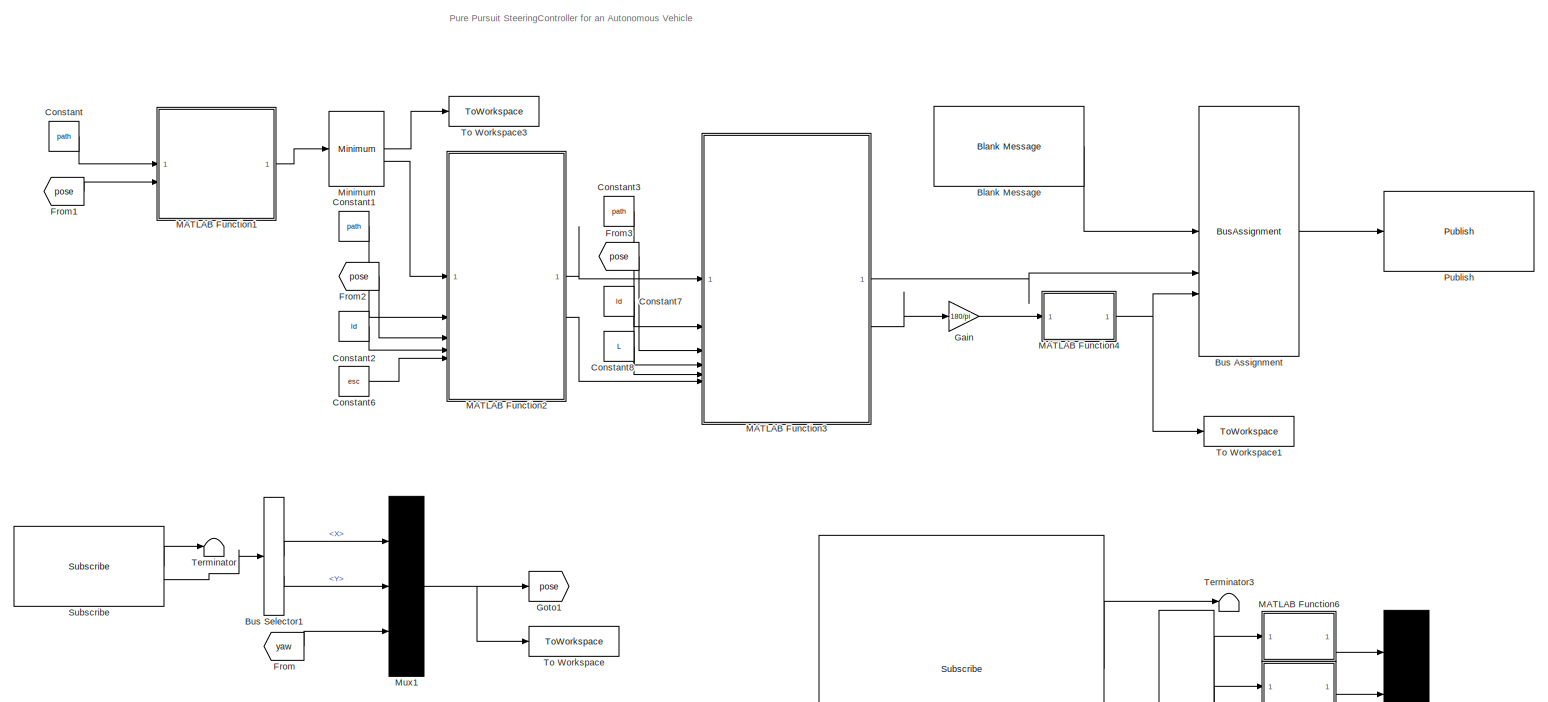
[diagram: root canvas - part 1/2, most of the canvas]
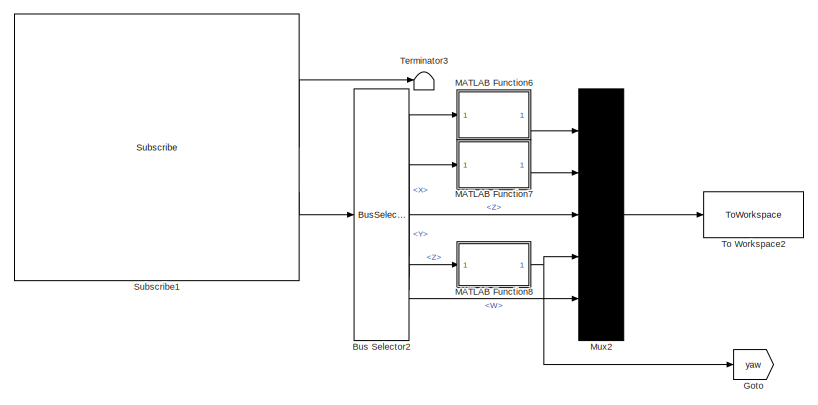
[diagram: root canvas - part 2/2, bottom right region]
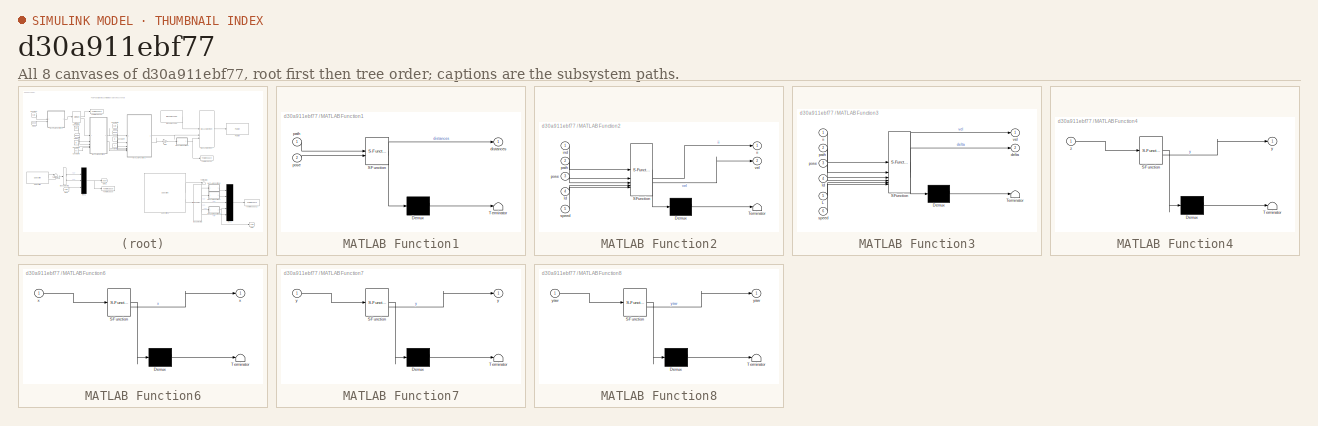
[diagram: thumbnail index - all 8 canvases of the model, root first then tree order]
MODEL slx_d30a911ebf77
KIND model
CONFIG AbsTol = auto
CONFIG EnableMultiTasking = off
CONFIG FixedStep = auto
CONFIG MaxStep = auto
CONFIG MinStep = auto
CONFIG RelTol = 1e-3
CONFIG SampleTimeConstraint = Unconstrained
CONFIG SolverName = VariableStepAuto
CONFIG StartTime = 0.0
CONFIG StopTime = inf
BLOCK [Reference] Blank Message  REF=robotlib/Blank Message
  LibrarySourceBlock = roslib/ROS/Blank Message
  SourceBlock = robotlib/Blank Message
  SourceType = ROS Blank Message
BLOCK [BusAssignment] Bus Assignment
  AssignedSignals = Linear.X,Angular.Z
BLOCK [BusSelector] Bus Selector1
  OutputSignals = Pose.Position.X,Pose.Position.Y
BLOCK [BusSelector] Bus Selector2
  OutputSignals = LinearAcceleration.X,LinearAcceleration.Y,AngularVelocity.Z,Orientation.Z,Orientation.W
BLOCK [Constant] Constant
  SampleTime = 1/hz
  Value = path
BLOCK [Constant] Constant1
  SampleTime = 1/hz
  Value = path
BLOCK [Constant] Constant2
  SampleTime = 1/hz
  Value = ld
BLOCK [Constant] Constant3
  SampleTime = 1/hz
  Value = path
BLOCK [Constant] Constant6
  SampleTime = 1/hz
  Value = esc
BLOCK [Constant] Constant7
  SampleTime = 1/hz
  Value = ld
BLOCK [Constant] Constant8
  SampleTime = 1/hz
  Value = L
BLOCK [From] From
  GotoTag = yaw
BLOCK [From] From1
  GotoTag = pose
BLOCK [From] From2
  GotoTag = pose
BLOCK [From] From3
  GotoTag = pose
BLOCK [Gain] Gain
  Gain = 180/pi
BLOCK [Goto] Goto
  GotoTag = yaw
BLOCK [Goto] Goto1
  GotoTag = pose
BLOCK [SubSystem] MATLAB Function1
  ErrorFcn = Stateflow.Translate.translate
  LibrarySourceBlock = simulink/User-Defined\nFunctions/MATLAB Function
  PermitHierarchicalResolution = ExplicitOnly
  SFBlockType = MATLAB Function
  TreatAsAtomicUnit = on
BLOCK [Demux] MATLAB Function1/ Demux 
  Outputs = 1
BLOCK [S-Function] MATLAB Function1/ SFunction 
  EnableBusSupport = on
  FunctionName = sf_sfun
  PortCounts = [2 2]
  SFcnIsStateOwnerBlock = off
  SFunctionDeploymentMode = off
  Tag = Stateflow S-Function 1
BLOCK [Terminator] MATLAB Function1/ Terminator 
BLOCK [Outport] MATLAB Function1/distances
BLOCK [Inport] MATLAB Function1/path
BLOCK [Inport] MATLAB Function1/pose
  Port = 2
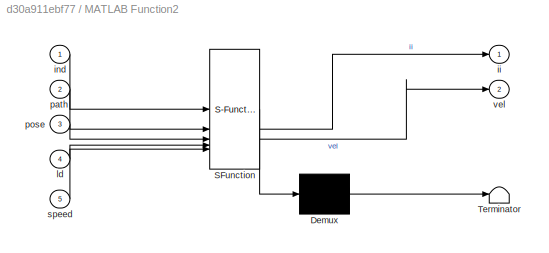
BLOCK [SubSystem] MATLAB Function2
  ErrorFcn = Stateflow.Translate.translate
  LibrarySourceBlock = simulink/User-Defined\nFunctions/MATLAB Function
  PermitHierarchicalResolution = ExplicitOnly
  SFBlockType = MATLAB Function
  TreatAsAtomicUnit = on
BLOCK [Demux] MATLAB Function2/ Demux 
  Outputs = 1
BLOCK [S-Function] MATLAB Function2/ SFunction 
  EnableBusSupport = on
  FunctionName = sf_sfun
  PortCounts = [5 3]
  SFcnIsStateOwnerBlock = off
  SFunctionDeploymentMode = off
  Tag = Stateflow S-Function 3
BLOCK [Terminator] MATLAB Function2/ Terminator 
BLOCK [Outport] MATLAB Function2/ii
BLOCK [Inport] MATLAB Function2/ind
BLOCK [Inport] MATLAB Function2/ld
  Port = 4
BLOCK [Inport] MATLAB Function2/path
  Port = 2
BLOCK [Inport] MATLAB Function2/pose
  Port = 3
BLOCK [Inport] MATLAB Function2/speed
  Port = 5
BLOCK [Outport] MATLAB Function2/vel
  Port = 2
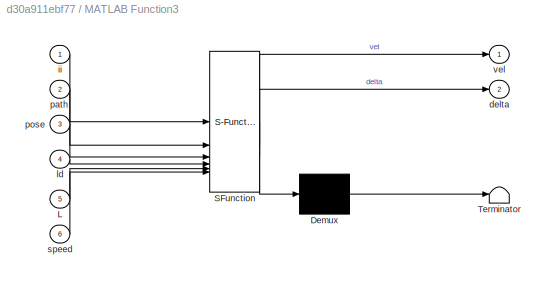
BLOCK [SubSystem] MATLAB Function3
  ErrorFcn = Stateflow.Translate.translate
  LibrarySourceBlock = simulink/User-Defined\nFunctions/MATLAB Function
  PermitHierarchicalResolution = ExplicitOnly
  SFBlockType = MATLAB Function
  TreatAsAtomicUnit = on
BLOCK [Demux] MATLAB Function3/ Demux 
  Outputs = 1
BLOCK [S-Function] MATLAB Function3/ SFunction 
  EnableBusSupport = on
  FunctionName = sf_sfun
  PortCounts = [6 3]
  SFcnIsStateOwnerBlock = off
  SFunctionDeploymentMode = off
  Tag = Stateflow S-Function 4
BLOCK [Terminator] MATLAB Function3/ Terminator 
BLOCK [Inport] MATLAB Function3/L
  Port = 5
BLOCK [Outport] MATLAB Function3/delta
  Port = 2
BLOCK [Inport] MATLAB Function3/ii
BLOCK [Inport] MATLAB Function3/ld
  Port = 4
BLOCK [Inport] MATLAB Function3/path
  Port = 2
BLOCK [Inport] MATLAB Function3/pose
  Port = 3
BLOCK [Inport] MATLAB Function3/speed
  Port = 6
BLOCK [Outport] MATLAB Function3/vel
BLOCK [SubSystem] MATLAB Function4
  ErrorFcn = Stateflow.Translate.translate
  LibrarySourceBlock = simulink/User-Defined\nFunctions/MATLAB Function
  PermitHierarchicalResolution = ExplicitOnly
  SFBlockType = MATLAB Function
  TreatAsAtomicUnit = on
BLOCK [Demux] MATLAB Function4/ Demux 
  Outputs = 1
BLOCK [S-Function] MATLAB Function4/ SFunction 
  EnableBusSupport = on
  FunctionName = sf_sfun
  PortCounts = [1 2]
  SFcnIsStateOwnerBlock = off
  SFunctionDeploymentMode = off
  Tag = Stateflow S-Function 5
BLOCK [Terminator] MATLAB Function4/ Terminator 
BLOCK [Outport] MATLAB Function4/y
BLOCK [Inport] MATLAB Function4/z
BLOCK [SubSystem] MATLAB Function6
  ErrorFcn = Stateflow.Translate.translate
  LibrarySourceBlock = simulink/User-Defined\nFunctions/MATLAB Function
  PermitHierarchicalResolution = ExplicitOnly
  SFBlockType = MATLAB Function
  TreatAsAtomicUnit = on
BLOCK [Demux] MATLAB Function6/ Demux 
  Outputs = 1
BLOCK [S-Function] MATLAB Function6/ SFunction 
  EnableBusSupport = on
  FunctionName = sf_sfun
  PortCounts = [1 2]
  SFcnIsStateOwnerBlock = off
  SFunctionDeploymentMode = off
  Tag = Stateflow S-Function 7
BLOCK [Terminator] MATLAB Function6/ Terminator 
BLOCK [Outport] MATLAB Function6/x
BLOCK [Inport] MATLAB Function6/x 
BLOCK [SubSystem] MATLAB Function7
  ErrorFcn = Stateflow.Translate.translate
  LibrarySourceBlock = simulink/User-Defined\nFunctions/MATLAB Function
  PermitHierarchicalResolution = ExplicitOnly
  SFBlockType = MATLAB Function
  TreatAsAtomicUnit = on
BLOCK [Demux] MATLAB Function7/ Demux 
  Outputs = 1
BLOCK [S-Function] MATLAB Function7/ SFunction 
  EnableBusSupport = on
  FunctionName = sf_sfun
  PortCounts = [1 2]
  SFcnIsStateOwnerBlock = off
  SFunctionDeploymentMode = off
  Tag = Stateflow S-Function 8
BLOCK [Terminator] MATLAB Function7/ Terminator 
BLOCK [Outport] MATLAB Function7/y
BLOCK [Inport] MATLAB Function7/y 
BLOCK [SubSystem] MATLAB Function8
  ErrorFcn = Stateflow.Translate.translate
  LibrarySourceBlock = simulink/User-Defined\nFunctions/MATLAB Function
  PermitHierarchicalResolution = ExplicitOnly
  SFBlockType = MATLAB Function
  TreatAsAtomicUnit = on
BLOCK [Demux] MATLAB Function8/ Demux 
  Outputs = 1
BLOCK [S-Function] MATLAB Function8/ SFunction 
  EnableBusSupport = on
  FunctionName = sf_sfun
  PortCounts = [1 2]
  SFcnIsStateOwnerBlock = off
  SFunctionDeploymentMode = off
  Tag = Stateflow S-Function 9
BLOCK [Terminator] MATLAB Function8/ Terminator 
BLOCK [Outport] MATLAB Function8/yaw
BLOCK [Inport] MATLAB Function8/yaw 
BLOCK [Reference] Minimum  REF=dspstat3/Minimum
  LibrarySourceBlock = dsphdlsupportstat/Minimum
  SourceBlock = dspstat3/Minimum
  SourceType = Minimum
  UserDataPersistent = on
BLOCK [Mux] Mux1
  DisplayOption = bar
  Inputs = 3
BLOCK [Mux] Mux2
  DisplayOption = bar
  Inputs = 5
BLOCK [Reference] Publish  REF=robotlib/Publish
  LibrarySourceBlock = roslib/ROS/Publish
  SourceBlock = robotlib/Publish
  SourceType = ROS Publish
BLOCK [Reference] Subscribe  REF=robotlib/Subscribe
  LibrarySourceBlock = roslib/ROS/Subscribe
  SourceBlock = robotlib/Subscribe
  SourceType = ROS Subscribe
BLOCK [Reference] Subscribe1  REF=robotlib/Subscribe
  LibrarySourceBlock = roslib/ROS/Subscribe
  SourceBlock = robotlib/Subscribe
  SourceType = ROS Subscribe
BLOCK [Terminator] Terminator
BLOCK [Terminator] Terminator3
BLOCK [ToWorkspace] To Workspace
  FixptAsFi = on
  MaxDataPoints = inf
  SampleTime = -1
  SaveFormat = Structure With Time
  VariableName = pose
BLOCK [ToWorkspace] To Workspace1
  FixptAsFi = on
  MaxDataPoints = inf
  SampleTime = 1/hz
  SaveFormat = Structure With Time
  VariableName = steering
BLOCK [ToWorkspace] To Workspace2
  FixptAsFi = on
  MaxDataPoints = inf
  SampleTime = -1
  SaveFormat = Structure With Time
  VariableName = IMU
BLOCK [ToWorkspace] To Workspace3
  FixptAsFi = on
  MaxDataPoints = inf
  SampleTime = -1
  SaveFormat = Structure With Time
  VariableName = min_d
ANNOTATION (root): Pure Pursuit SteeringController for an Autonomous Vehicle
LINE Blank Message:1 -> Bus Assignment:1
LINE Bus Assignment:1 -> Publish:1
LINE Bus Selector1:1 -> Mux1:1
LINE Bus Selector1:2 -> Mux1:2
LINE Bus Selector2:1 -> MATLAB Function6:1
LINE Bus Selector2:2 -> MATLAB Function7:1
LINE Bus Selector2:3 -> Mux2:3
LINE Bus Selector2:4 -> MATLAB Function8:1
LINE Bus Selector2:5 -> Mux2:5
LINE Constant1:1 -> MATLAB Function2:2
LINE Constant2:1 -> MATLAB Function2:4
LINE Constant3:1 -> MATLAB Function3:2
LINE Constant6:1 -> MATLAB Function2:5
LINE Constant7:1 -> MATLAB Function3:4
LINE Constant8:1 -> MATLAB Function3:5
LINE Constant:1 -> MATLAB Function1:1
LINE From1:1 -> MATLAB Function1:2
LINE From2:1 -> MATLAB Function2:3
LINE From3:1 -> MATLAB Function3:3
LINE From:1 -> Mux1:3
LINE Gain:1 -> MATLAB Function4:1
LINE MATLAB Function1:1 -> Minimum:1
LINE MATLAB Function2:1 -> MATLAB Function3:1
LINE MATLAB Function2:2 -> MATLAB Function3:6
LINE MATLAB Function3:1 -> Bus Assignment:2
LINE MATLAB Function3:2 -> Gain:1
NET MATLAB Function4:1 -> Bus Assignment:3, To Workspace1:1
LINE MATLAB Function6:1 -> Mux2:1
LINE MATLAB Function7:1 -> Mux2:2
NET MATLAB Function8:1 -> Goto:1, Mux2:4
LINE Minimum:1 -> To Workspace3:1
LINE Minimum:2 -> MATLAB Function2:1
NET Mux1:1 -> Goto1:1, To Workspace:1
LINE Mux2:1 -> To Workspace2:1
LINE Subscribe1:1 -> Terminator3:1
LINE Subscribe1:2 -> Bus Selector2:1
LINE Subscribe:1 -> Terminator:1
LINE Subscribe:2 -> Bus Selector1:1
note: NET lines group one-source signal fan-out (src -> all destinations, sorted); 1:1 wires keep LINE
CHART MATLAB Function1 states=1 transitions=1
  STATE_LABEL 'eML_blk_kernel()'
  STATE_LABEL 'SCRIPT:\nfunction distances  = min_dist_find(path,pose)\n s = length(path);\n dx = zeros(1,s);\n dy = zeros(1,s);\n d  = zeros(1,s);\n for i = 1:s\n     dx(i) = path(i,1) - pose(1);\n     dy(i) = path(i,2) - pose(2);\n end\n distances = sqrt(dx.^2 + dy.^2);\nend\n'
CHART MATLAB Function2 states=1 transitions=1
  STATE_LABEL 'eML_blk_kernel()'
  STATE_LABEL 'SCRIPT:\nfunction [ii,vel] = Target_point(ind,path,pose,ld,speed)\nii = ind + 1;\nvel = speed;\ndist = sqrt((path(ii,1)-pose(1))^2 + (path(ii,2)-pose(2))^2);\n\nwhile (dist<ld)\n    ii = ii + 1;\n    if ii >= (length(path)-5)\n        vel = 0;\n    else\n        vel = speed;\n    end\n\n\n    dist = sqrt((path(ii,1)-pose(1))^2 + (path(ii,2)-pose(2))^2);\nend\nend\n'
CHART MATLAB Function3 states=1 transitions=1
  STATE_LABEL 'eML_blk_kernel()'
  STATE_LABEL 'SCRIPT:\nfunction [vel,delta] = controller(ii,path,pose,ld,L,speed)\n%%%%%%%%%%%%%%%%%%%%%%%%%%%%%%%%%%%%%%5\n\n%%%%%%%%%%%%%%%%%%%%%%%%%%%%%%%%%%%%%%%%%%%%\n\n% dx = path(ii,1)- pose(1);\n% dy = path(ii,2)- pose(2);\n% angle = atan2(dy,dx);\n% if(angle < 0)\n%     angle = pi + (pi +angle);\n% else\n% end\n% alpha = (angle - pose(3));\n% k = 2*sin(alpha)/ld;\n% delta = atan(k*L);\n\n%%%%%%%%%%%%%%%%%%%%%%%%%%%%%%%...<+393ch>'
CHART MATLAB Function4 states=1 transitions=1
  STATE_LABEL 'eML_blk_kernel()'
  STATE_LABEL 'SCRIPT:\nfunction y = fcn(z)\n\nif (z > 25)\n    z = 25;\nelseif (z < -25)\n    z = -25;\nelse\n    z =z;\nend\n\ny = z;\nend\n'
CHART MATLAB Function6 states=1 transitions=1
  STATE_LABEL 'eML_blk_kernel()'
  STATE_LABEL 'SCRIPT:\nfunction x = fcn(x)\nx = x - (0);\nend\n'
CHART MATLAB Function7 states=1 transitions=1
  STATE_LABEL 'eML_blk_kernel()'
  STATE_LABEL 'SCRIPT:\nfunction y = fcn(y)\ny = y - (0);\nend\n'
CHART MATLAB Function8 states=1 transitions=1
  STATE_LABEL 'eML_blk_kernel()'
  STATE_LABEL 'SCRIPT:\nfunction yaw = fcn(yaw)\n\n  yaw = 360-yaw;\n  yaw = yaw*pi/180;\nend\n'
CHART  states=0 transitions=0
CHART  states=0 transitions=0
CHART  states=0 transitions=0
CHART  states=0 transitions=0
CHART  states=0 transitions=0
CHART  states=0 transitions=0
CHART  states=0 transitions=0
